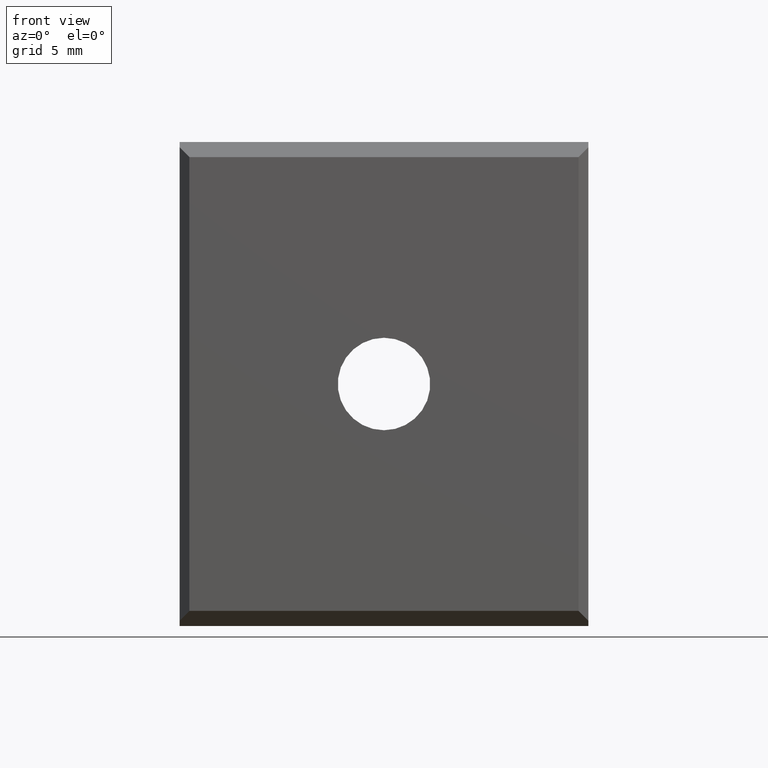
[diagram: clean part render]
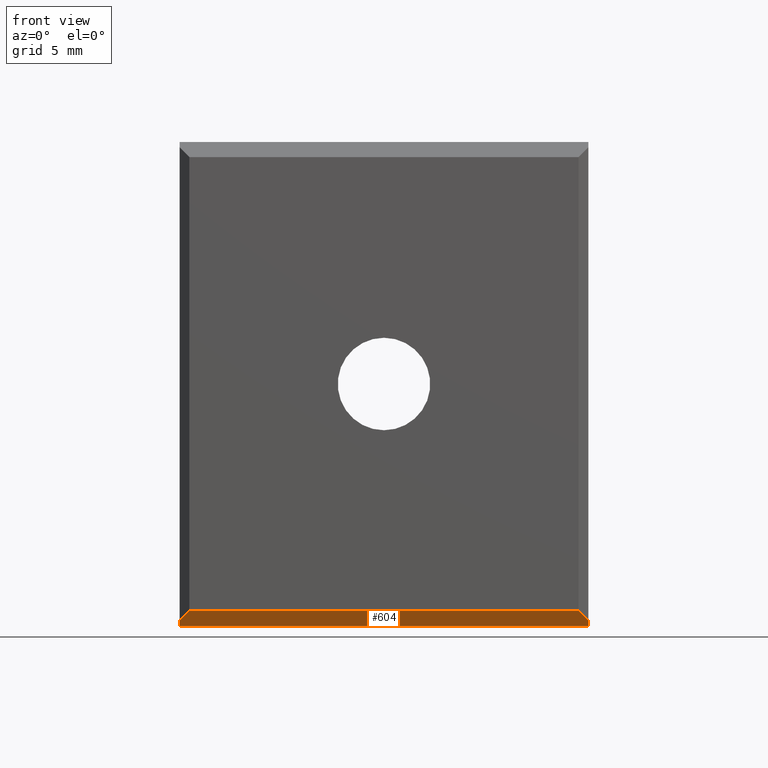
[diagram: same view with one face highlighted and labeled with its STEP entity id]
A machine part, front view. The second image highlights one B-rep face of the part: STEP entity #604.
In plain terms, the highlighted planar face has unit normal (-0, -0.7071, -0.7071).
Its self-contained STEP definition (entity closure, byte-faithful):
#321 = EDGE_CURVE ( 'NONE', #4836, #4873, #2037, .T. ) ;
#325 = EDGE_CURVE ( 'NONE', #4850, #4849, #2051, .T. ) ;
#353 = EDGE_CURVE ( 'NONE', #3526, #4836, #1095, .T. ) ;
#363 = EDGE_CURVE ( 'NONE', #3526, #4849, #1105, .T. ) ;
#376 = EDGE_CURVE ( 'NONE', #4873, #3564, #1163, .T. ) ;
#382 = EDGE_CURVE ( 'NONE', #3564, #4850, #1162, .T. ) ;
#604 = ADVANCED_FACE ( 'NONE', ( #2370 ), #2347, .T. ) ;
#723 = VECTOR ( 'NONE', #2082, 1000.000000000000100 ) ;
#733 = VECTOR ( 'NONE', #1110, 1000.000000000000000 ) ;
#738 = VECTOR ( 'NONE', #1180, 999.9999999999998900 ) ;
#742 = VECTOR ( 'NONE', #1174, 1000.000000000000000 ) ;
#781 = VECTOR ( 'NONE', #2061, 1000.000000000000000 ) ;
#790 = VECTOR ( 'NONE', #1101, 1000.000000000000000 ) ;
#1051 = AXIS2_PLACEMENT_3D ( 'NONE', #2389, #2391, #2368 ) ;
#1095 = LINE ( 'NONE', #1097, #790 ) ;
#1097 = CARTESIAN_POINT ( 'NONE',  ( -9.587357717040948300, -3.408670829958865300E-016, -6.035560115081842100 ) ) ;
#1101 = DIRECTION ( 'NONE',  ( -0.5773502691899625700, 0.5773502691899625700, -0.5773502691889521600 ) ) ;
#1105 = LINE ( 'NONE', #1119, #733 ) ;
#1110 = DIRECTION ( 'NONE',  ( 1.000000000000000000, 0.0000000000000000000, 0.0000000000000000000 ) ) ;
#1119 = CARTESIAN_POINT ( 'NONE',  ( 8.459047474323355700, 0.0000000000000000000, -6.035560115081842100 ) ) ;
#1145 = CARTESIAN_POINT ( 'NONE',  ( -9.783762918865505800, 0.6999999999997806900, -6.735560115081279200 ) ) ;
#1162 = LINE ( 'NONE', #1165, #738 ) ;
#1163 = LINE ( 'NONE', #1145, #742 ) ;
#1165 = CARTESIAN_POINT ( 'NONE',  ( 8.962642282959176800, 0.7000000000000027300, -6.735560115114329200 ) ) ;
#1174 = DIRECTION ( 'NONE',  ( 1.000000000000000000, -8.755881686935503400E-013, -8.755881686935508400E-013 ) ) ;
#1180 = DIRECTION ( 'NONE',  ( 0.0000000000000000000, -0.7071067811865489100, 0.7071067811865462400 ) ) ;
#2009 = CARTESIAN_POINT ( 'NONE',  ( -10.03735771704095100, 0.4500000000000025100, -6.485560115081057100 ) ) ;
#2037 = LINE ( 'NONE', #2009, #723 ) ;
#2051 = LINE ( 'NONE', #2086, #781 ) ;
#2061 = DIRECTION ( 'NONE',  ( -0.5773502691892890000, -0.5773502691892890000, 0.5773502691902994100 ) ) ;
#2082 = DIRECTION ( 'NONE',  ( 0.0000000000000000000, 0.7071067811865474600, -0.7071067811865474600 ) ) ;
#2086 = CARTESIAN_POINT ( 'NONE',  ( 8.962642282959176800, 0.4500000000000027300, -6.485560115114330100 ) ) ;
#2347 = PLANE ( 'NONE',  #1051 ) ;
#2368 = DIRECTION ( 'NONE',  ( 0.0000000000000000000, 0.7071067811865477900, -0.7071067811865473500 ) ) ;
#2370 = FACE_OUTER_BOUND ( 'NONE', #3955, .T. ) ;
#2389 = CARTESIAN_POINT ( 'NONE',  ( -9.783762918865505800, 0.7000000000000027300, -6.735560115081501200 ) ) ;
#2391 = DIRECTION ( 'NONE',  ( -1.238268663219840800E-012, -0.7071067811865473500, -0.7071067811865477900 ) ) ;
#2573 = CARTESIAN_POINT ( 'NONE',  ( -9.587357717044911400, 3.962709863739654700E-012, -6.035560115085811400 ) ) ;
#2578 = CARTESIAN_POINT ( 'NONE',  ( 8.962642282959176800, 0.6999999999958437200, -6.735560115110170700 ) ) ;
#2683 = CARTESIAN_POINT ( 'NONE',  ( 8.512642282959173900, -1.385243718852630900E-016, -6.035560115105615100 ) ) ;
#2687 = CARTESIAN_POINT ( 'NONE',  ( 8.962642282959176800, 0.4500000000000025100, -6.485560115114330100 ) ) ;
#2718 = CARTESIAN_POINT ( 'NONE',  ( -10.03735771704095100, 0.4500000000000036200, -6.485560115081063300 ) ) ;
#2765 = CARTESIAN_POINT ( 'NONE',  ( -10.03735771704095100, 0.7000000000000025100, -6.735560115081057100 ) ) ;
#3526 = VERTEX_POINT ( 'NONE', #2573 ) ;
#3564 = VERTEX_POINT ( 'NONE', #2578 ) ;
#3594 = ORIENTED_EDGE ( 'NONE', *, *, #325, .T. ) ;
#3660 = ORIENTED_EDGE ( 'NONE', *, *, #363, .F. ) ;
#3662 = ORIENTED_EDGE ( 'NONE', *, *, #353, .T. ) ;
#3666 = ORIENTED_EDGE ( 'NONE', *, *, #382, .T. ) ;
#3668 = ORIENTED_EDGE ( 'NONE', *, *, #321, .T. ) ;
#3678 = ORIENTED_EDGE ( 'NONE', *, *, #376, .T. ) ;
#3955 = EDGE_LOOP ( 'NONE', ( #3678, #3666, #3594, #3660, #3662, #3668 ) ) ;
#4836 = VERTEX_POINT ( 'NONE', #2718 ) ;
#4849 = VERTEX_POINT ( 'NONE', #2683 ) ;
#4850 = VERTEX_POINT ( 'NONE', #2687 ) ;
#4873 = VERTEX_POINT ( 'NONE', #2765 ) ;